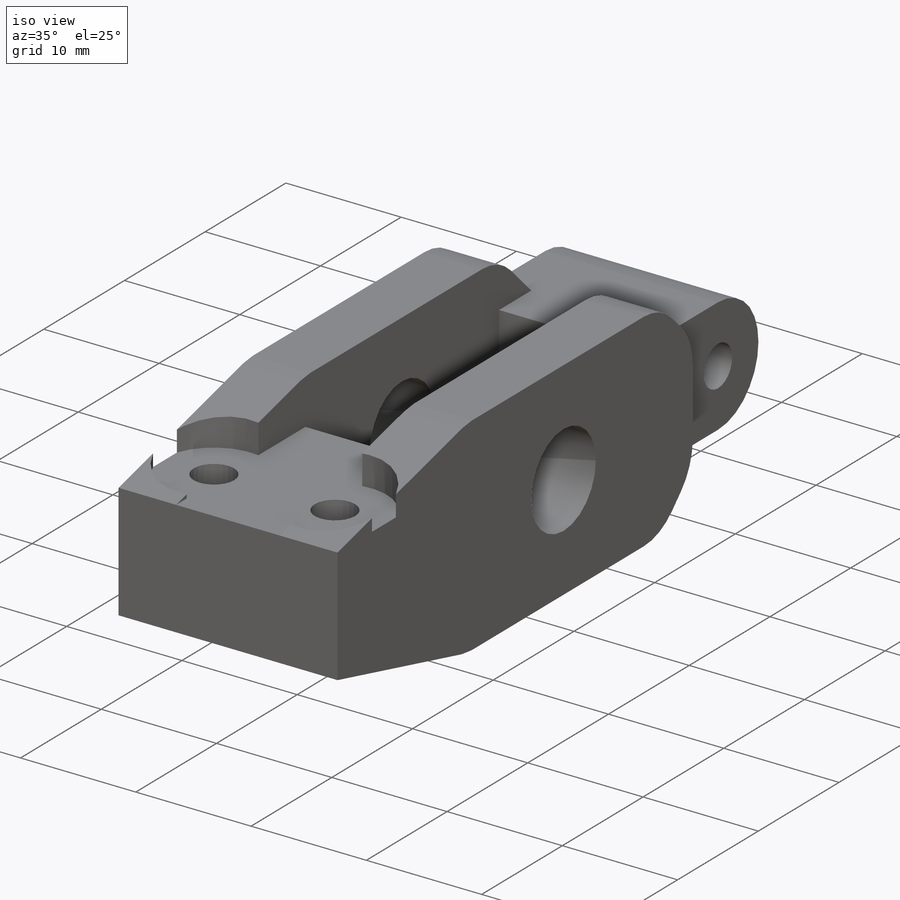
[diagram: iso view]
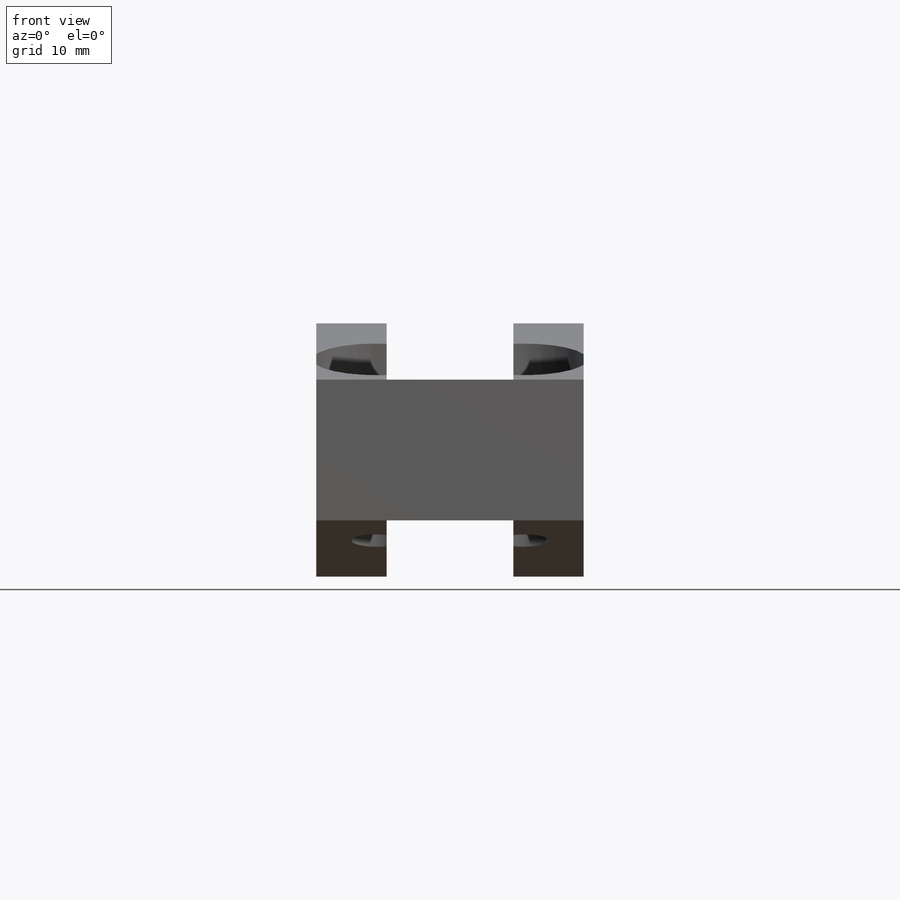
[diagram: front view]
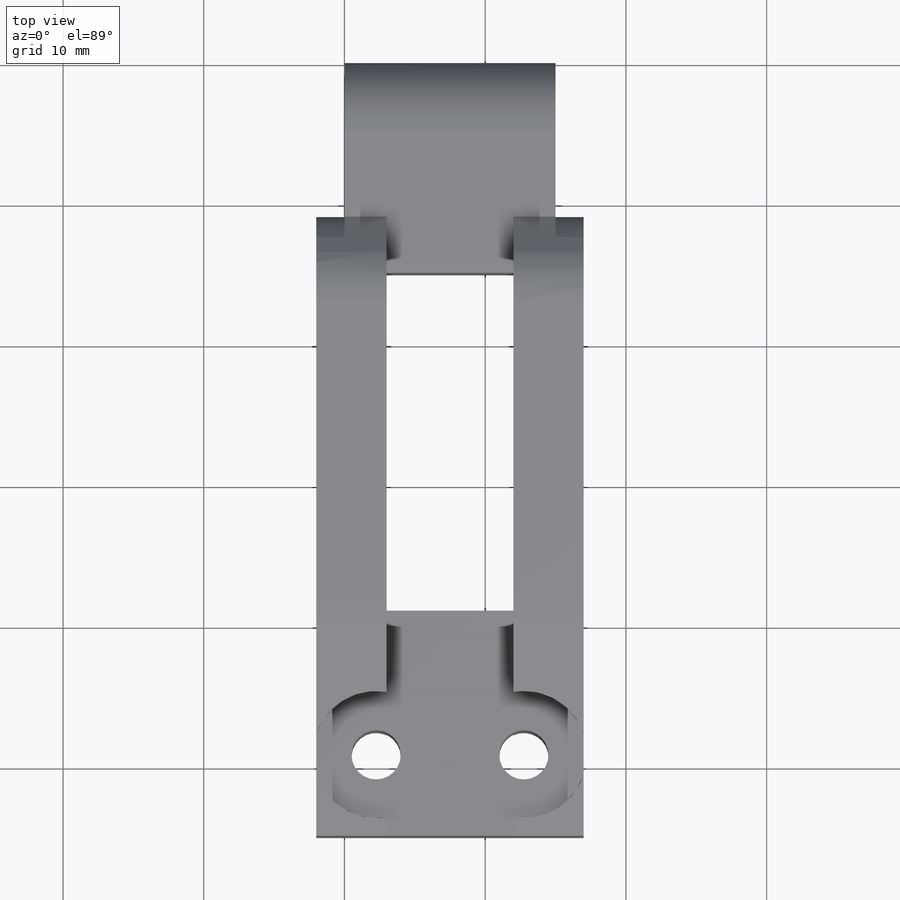
[diagram: top view]
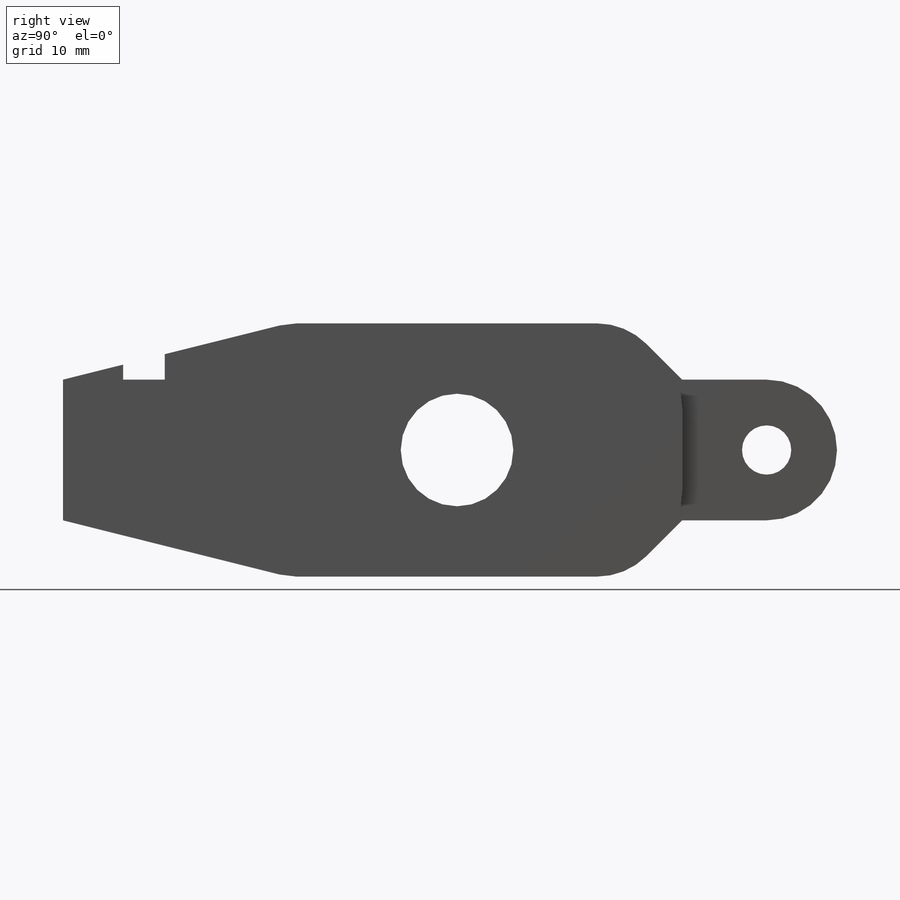
[diagram: right view]
SOLIDWORKS PART (.sldprt)
format: sldprt  version: not decoded by parser v0  size: 385,024 bytes
history: native  units: mm
features: sketch x8, cut_extrude x5, extrude x3, fillet x2, material x1 (+12 scaffold rows collapsed)
feature tree (31):
  scaffold x12  (default folders/planes/origin — collapsed)
  material  "ABS PC"
  sketch  "Sketch3"  dims[c1.D1=~51.436819mm c1.D2=~25.65846mm c2.D1=15.0mm c2.D2=55.0mm]
  extrude  "Boss-Extrude1"  Depth=10mm
  sketch  "Sketch5"  dims[c1.D1=~6.499424mm c1.D2=~31.826809mm c2.D1=9.0mm c2.D2=3.0mm c2.D3=24.0mm c2.D4=15.0mm c2.D5=4.0mm c2.D6=10.0mm]
  cut_extrude  "Cut-Extrude1"  [1 undecoded]
  fillet  "Fillet1"  Radius=5mm
  sketch  "Sketch6"  dims[D1=3.5mm]
  cut_extrude  "Cut-Extrude2"  [1 undecoded]
  sketch  "Sketch8"  dims[c1.D1=4.0mm c1.D2=4.0mm c1.D3=4.0mm c2.D2=4.0mm]
  extrude  "Boss-Extrude2"  Depth=2mm
  sketch  "Sketch9"  dims[D1=4.0mm D2=4.0mm D3=4.0mm]
  extrude  "Boss-Extrude3"  Depth=2mm
  fillet  "Fillet3"  Radius=5mm
  sketch  "Sketch10"  dims[c1.D1=8.0mm c1.D2=8.0mm c1.D3=8.0mm c2.D2=5.0mm c2.D3=12.0mm]
  cut_extrude  "Cut-Extrude4"  [1 undecoded]
  sketch  "Sketch12"  dims[c1.D1=3.5mm c1.D2=3.5mm c1.D3=3.5mm c2.D2=5.75mm c2.D3=4.25mm c2.D4=4.25mm]
  cut_extrude  "Cut-Extrude6"  [1 undecoded]
  sketch  "Sketch14"  dims[D1=9.0mm]
  cut_extrude  "Cut-Extrude9"  [1 undecoded]
decode coverage: 13 of 18 modeling features carry decoded parameters
note: ~ marks probable driven/reference dimensions
note: 5 parameter values undecoded
summary: no parameter record found for 5 features
note: suppression state not decoded; provenance and decode notes live in map.json
